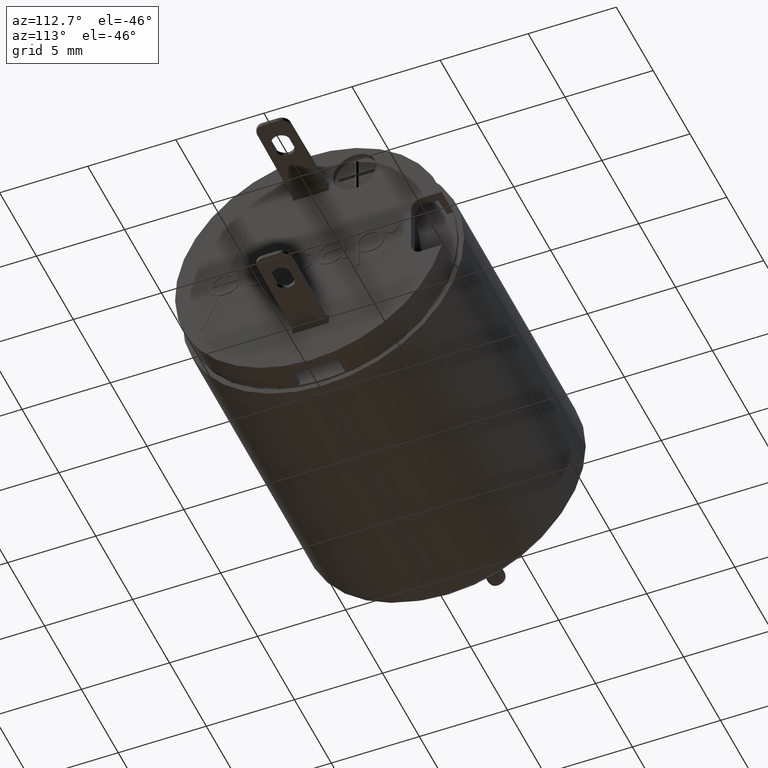
[diagram: clean part render]
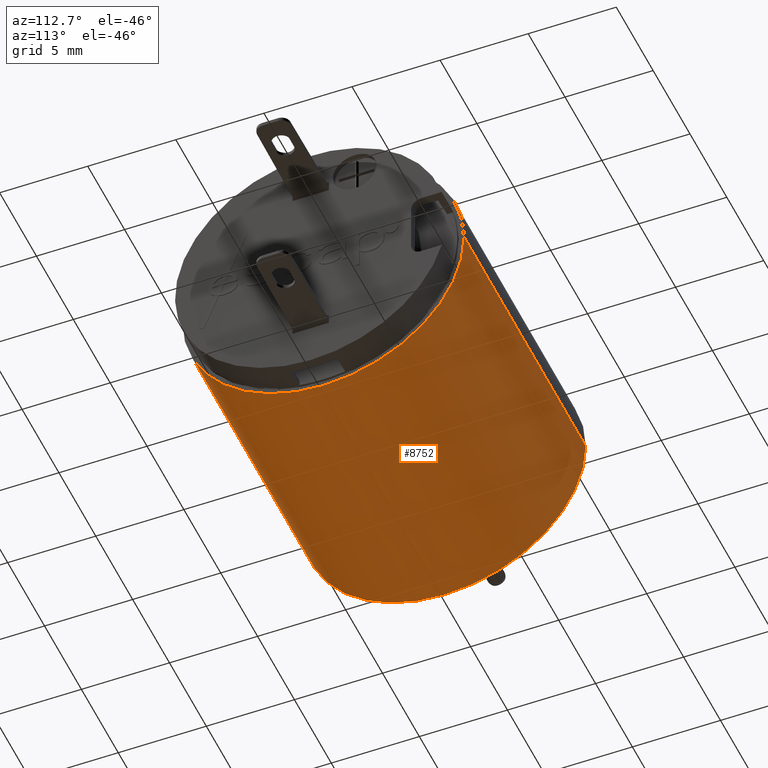
[diagram: same view with one face highlighted and labeled with its STEP entity id]
A machine part, auxiliary view. The second image highlights one B-rep face of the part: STEP entity #8752.
In plain terms, the highlighted cylindrical surface (partial cylindrical patch) has radius 8 mm, axis along (-1, 0, 0).
Its self-contained STEP definition (entity closure, byte-faithful):
#1047=CARTESIAN_POINT('',(0.E0,1.224646799147E-14,0.E0));
#1048=DIRECTION('',(-1.E0,0.E0,0.E0));
#1049=DIRECTION('',(0.E0,1.E0,0.E0));
#1050=AXIS2_PLACEMENT_3D('',#1047,#1048,#1049);
#1072=DIRECTION('',(-1.E0,8.817189402841E-14,0.E0));
#1073=VECTOR('',#1072,1.65E1);
#1074=CARTESIAN_POINT('',(0.E0,-8.E0,0.E0));
#1075=LINE('',#1074,#1073);
#1076=DIRECTION('',(1.E0,6.125739646174E-14,0.E0));
#1077=VECTOR('',#1076,1.65E1);
#1078=CARTESIAN_POINT('',(-1.65E1,7.999999999999E0,0.E0));
#1079=LINE('',#1078,#1077);
#1089=CARTESIAN_POINT('',(-1.65E1,1.426713521002E-14,0.E0));
#1090=DIRECTION('',(1.E0,0.E0,0.E0));
#1091=DIRECTION('',(0.E0,-1.E0,0.E0));
#1092=AXIS2_PLACEMENT_3D('',#1089,#1090,#1091);
#6742=CARTESIAN_POINT('',(0.E0,8.E0,0.E0));
#6743=CARTESIAN_POINT('',(0.E0,-8.E0,0.E0));
#6744=VERTEX_POINT('',#6742);
#6745=VERTEX_POINT('',#6743);
#6752=CARTESIAN_POINT('',(-1.65E1,-7.999999999998E0,0.E0));
#6753=CARTESIAN_POINT('',(-1.65E1,7.999999999998E0,0.E0));
#6754=VERTEX_POINT('',#6752);
#6755=VERTEX_POINT('',#6753);
#8738=CARTESIAN_POINT('',(3.3E-1,1.220605464710E-14,0.E0));
#8739=DIRECTION('',(-1.E0,0.E0,0.E0));
#8740=DIRECTION('',(0.E0,1.E0,0.E0));
#8741=AXIS2_PLACEMENT_3D('',#8738,#8739,#8740);
#8742=CYLINDRICAL_SURFACE('',#8741,8.E0);
#8744=ORIENTED_EDGE('',*,*,#8743,.F.);
#8745=ORIENTED_EDGE('',*,*,#8725,.F.);
#8747=ORIENTED_EDGE('',*,*,#8746,.F.);
#8749=ORIENTED_EDGE('',*,*,#8748,.F.);
#8750=EDGE_LOOP('',(#8744,#8745,#8747,#8749));
#8751=FACE_OUTER_BOUND('',#8750,.F.);
#8752=ADVANCED_FACE('',(#8751),#8742,.T.);
#1051=CIRCLE('',#1050,8.E0);
#1093=CIRCLE('',#1092,7.999999999998E0);
#8725=EDGE_CURVE('',#6744,#6745,#1051,.T.);
#8743=EDGE_CURVE('',#6745,#6754,#1075,.T.);
#8746=EDGE_CURVE('',#6755,#6744,#1079,.T.);
#8748=EDGE_CURVE('',#6754,#6755,#1093,.T.);